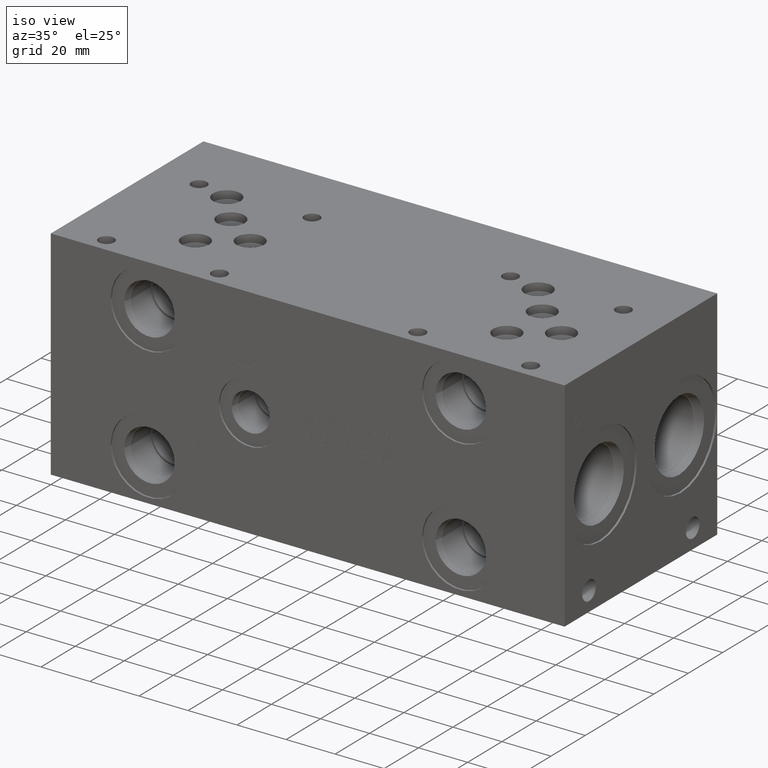
[diagram: clean part render]
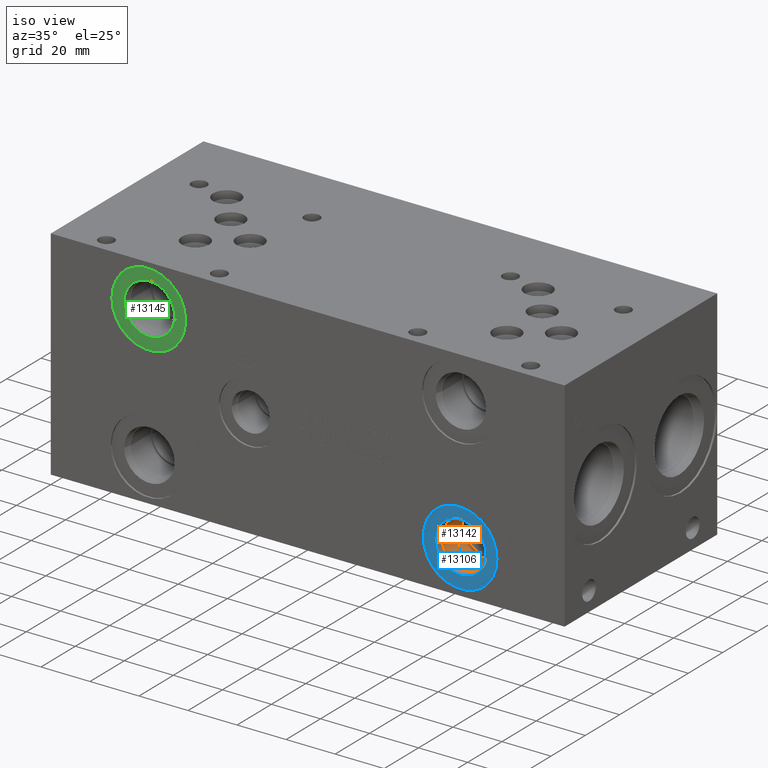
[diagram: same view with three faces highlighted in distinct colors, each labeled with its STEP entity id]
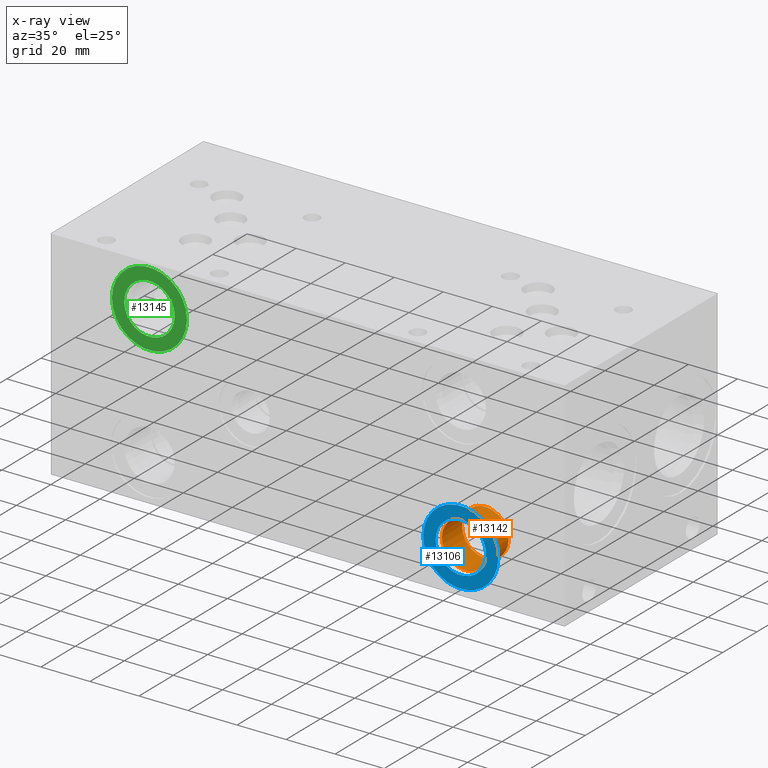
[diagram: x-ray of the same camera — body ghosted, the three highlighted faces saturated]
A machine part, iso view with three faces highlighted in distinct colors.
The next image is the same camera in x-ray (body ghosted, the three faces saturated) — at least one of them is partly hidden behind the body in this view.
Their STEP definitions:

[orange] entity #13142 — the highlighted cylindrical surface (bore or boss wall) has radius 9.525 mm, axis along (0, -1, 0).
#125=CYLINDRICAL_SURFACE('',#13867,9.525);
#310=CIRCLE('',#13783,9.525);
#359=CIRCLE('',#13864,9.525);
#360=CIRCLE('',#13865,9.525);
#1718=FACE_OUTER_BOUND('',#2480,.T.);
#2480=EDGE_LOOP('',(#11306,#11307,#11308,#11309,#11310));
#3691=LINE('',#22555,#4859);
#4859=VECTOR('',#16445,9.525);
#5993=VERTEX_POINT('',#22387);
#6046=VERTEX_POINT('',#22548);
#6047=VERTEX_POINT('',#22549);
#7766=EDGE_CURVE('',#5993,#5993,#310,.T.);
#7841=EDGE_CURVE('',#6046,#6047,#359,.T.);
#7842=EDGE_CURVE('',#6047,#6046,#360,.T.);
#7844=EDGE_CURVE('',#5993,#6047,#3691,.T.);
#11306=ORIENTED_EDGE('',*,*,#7766,.T.);
#11307=ORIENTED_EDGE('',*,*,#7844,.T.);
#11308=ORIENTED_EDGE('',*,*,#7841,.F.);
#11309=ORIENTED_EDGE('',*,*,#7842,.F.);
#11310=ORIENTED_EDGE('',*,*,#7844,.F.);
#13142=ADVANCED_FACE('',(#1718),#125,.F.);
#13783=AXIS2_PLACEMENT_3D('',#22389,#16249,#16250);
#13864=AXIS2_PLACEMENT_3D('',#22550,#16437,#16438);
#13865=AXIS2_PLACEMENT_3D('',#22551,#16439,#16440);
#13867=AXIS2_PLACEMENT_3D('',#22554,#16443,#16444);
#16249=DIRECTION('center_axis',(0.,-1.,0.));
#16250=DIRECTION('ref_axis',(1.,0.,0.));
#16437=DIRECTION('center_axis',(0.,-1.,0.));
#16438=DIRECTION('ref_axis',(1.,0.,0.));
#16439=DIRECTION('center_axis',(0.,-1.,0.));
#16440=DIRECTION('ref_axis',(1.,0.,0.));
#16443=DIRECTION('center_axis',(0.,-1.,0.));
#16444=DIRECTION('ref_axis',(1.,0.,0.));
#16445=DIRECTION('',(0.,1.,0.));
#22387=CARTESIAN_POINT('',(157.1498,3.4036,17.4752));
#22389=CARTESIAN_POINT('Origin',(166.6748,3.4036,17.4752));
#22548=CARTESIAN_POINT('',(176.1998,15.0622,17.4752));
#22549=CARTESIAN_POINT('',(157.1498,15.0622,17.4752));
#22550=CARTESIAN_POINT('Origin',(166.6748,15.0622,17.4752));
#22551=CARTESIAN_POINT('Origin',(166.6748,15.0622,17.4752));
#22554=CARTESIAN_POINT('Origin',(166.6748,7.5311,17.4752));
#22555=CARTESIAN_POINT('',(157.1498,7.5311,17.4752));

[blue] entity #13106 — the highlighted planar face has unit normal (0, 1, 0).
#302=CIRCLE('',#13771,15.3162);
#303=CIRCLE('',#13772,15.3162);
#304=CIRCLE('',#13774,10.2997);
#305=CIRCLE('',#13775,10.2997);
#548=FACE_BOUND('',#2438,.T.);
#1682=FACE_OUTER_BOUND('',#2437,.T.);
#2437=EDGE_LOOP('',(#11133,#11134));
#2438=EDGE_LOOP('',(#11135,#11136));
#5985=VERTEX_POINT('',#22364);
#5986=VERTEX_POINT('',#22366);
#5987=VERTEX_POINT('',#22370);
#5988=VERTEX_POINT('',#22371);
#7755=EDGE_CURVE('',#5985,#5986,#302,.T.);
#7756=EDGE_CURVE('',#5986,#5985,#303,.T.);
#7757=EDGE_CURVE('',#5987,#5988,#304,.T.);
#7758=EDGE_CURVE('',#5988,#5987,#305,.T.);
#11133=ORIENTED_EDGE('',*,*,#7756,.F.);
#11134=ORIENTED_EDGE('',*,*,#7755,.F.);
#11135=ORIENTED_EDGE('',*,*,#7757,.T.);
#11136=ORIENTED_EDGE('',*,*,#7758,.T.);
#12023=PLANE('',#13773);
#13106=ADVANCED_FACE('',(#1682,#548),#12023,.F.);
#13771=AXIS2_PLACEMENT_3D('',#22367,#16222,#16223);
#13772=AXIS2_PLACEMENT_3D('',#22368,#16224,#16225);
#13773=AXIS2_PLACEMENT_3D('',#22369,#16226,#16227);
#13774=AXIS2_PLACEMENT_3D('',#22372,#16228,#16229);
#13775=AXIS2_PLACEMENT_3D('',#22373,#16230,#16231);
#16222=DIRECTION('center_axis',(0.,1.,0.));
#16223=DIRECTION('ref_axis',(1.,0.,0.));
#16224=DIRECTION('center_axis',(0.,1.,0.));
#16225=DIRECTION('ref_axis',(1.,0.,0.));
#16226=DIRECTION('center_axis',(0.,1.,0.));
#16227=DIRECTION('ref_axis',(0.,0.,1.));
#16228=DIRECTION('center_axis',(0.,1.,0.));
#16229=DIRECTION('ref_axis',(1.,0.,0.));
#16230=DIRECTION('center_axis',(0.,1.,0.));
#16231=DIRECTION('ref_axis',(1.,0.,0.));
#22364=CARTESIAN_POINT('',(151.3586,0.7874,17.4752));
#22366=CARTESIAN_POINT('',(181.991,0.7874,17.4752));
#22367=CARTESIAN_POINT('Origin',(166.6748,0.7874,17.4752));
#22368=CARTESIAN_POINT('Origin',(166.6748,0.7874,17.4752));
#22369=CARTESIAN_POINT('Origin',(176.9745,0.7874,17.4752));
#22370=CARTESIAN_POINT('',(176.9745,0.7874,17.4752));
#22371=CARTESIAN_POINT('',(156.3751,0.787399999999999,17.4752));
#22372=CARTESIAN_POINT('Origin',(166.6748,0.7874,17.4752));
#22373=CARTESIAN_POINT('Origin',(166.6748,0.7874,17.4752));

[green] entity #13145 — the highlighted planar face has unit normal (0, 1, 0).
#362=CIRCLE('',#13870,15.3162);
#363=CIRCLE('',#13871,15.3162);
#364=CIRCLE('',#13873,10.2997);
#365=CIRCLE('',#13874,10.2997);
#555=FACE_BOUND('',#2484,.T.);
#1721=FACE_OUTER_BOUND('',#2483,.T.);
#2483=EDGE_LOOP('',(#11322,#11323));
#2484=EDGE_LOOP('',(#11324,#11325));
#6049=VERTEX_POINT('',#22559);
#6050=VERTEX_POINT('',#22561);
#6051=VERTEX_POINT('',#22565);
#6052=VERTEX_POINT('',#22566);
#7847=EDGE_CURVE('',#6049,#6050,#362,.T.);
#7848=EDGE_CURVE('',#6050,#6049,#363,.T.);
#7849=EDGE_CURVE('',#6051,#6052,#364,.T.);
#7850=EDGE_CURVE('',#6052,#6051,#365,.T.);
#11322=ORIENTED_EDGE('',*,*,#7848,.F.);
#11323=ORIENTED_EDGE('',*,*,#7847,.F.);
#11324=ORIENTED_EDGE('',*,*,#7849,.T.);
#11325=ORIENTED_EDGE('',*,*,#7850,.T.);
#12030=PLANE('',#13872);
#13145=ADVANCED_FACE('',(#1721,#555),#12030,.F.);
#13870=AXIS2_PLACEMENT_3D('',#22562,#16452,#16453);
#13871=AXIS2_PLACEMENT_3D('',#22563,#16454,#16455);
#13872=AXIS2_PLACEMENT_3D('',#22564,#16456,#16457);
#13873=AXIS2_PLACEMENT_3D('',#22567,#16458,#16459);
#13874=AXIS2_PLACEMENT_3D('',#22568,#16460,#16461);
#16452=DIRECTION('center_axis',(0.,1.,0.));
#16453=DIRECTION('ref_axis',(1.,0.,0.));
#16454=DIRECTION('center_axis',(0.,1.,0.));
#16455=DIRECTION('ref_axis',(1.,0.,0.));
#16456=DIRECTION('center_axis',(0.,1.,0.));
#16457=DIRECTION('ref_axis',(0.,0.,1.));
#16458=DIRECTION('center_axis',(0.,1.,0.));
#16459=DIRECTION('ref_axis',(1.,0.,0.));
#16460=DIRECTION('center_axis',(0.,1.,0.));
#16461=DIRECTION('ref_axis',(1.,0.,0.));
#22559=CARTESIAN_POINT('',(24.3586,0.7874,71.4248));
#22561=CARTESIAN_POINT('',(54.991,0.7874,71.4248));
#22562=CARTESIAN_POINT('Origin',(39.6748,0.7874,71.4248));
#22563=CARTESIAN_POINT('Origin',(39.6748,0.7874,71.4248));
#22564=CARTESIAN_POINT('Origin',(49.9745,0.7874,71.4248));
#22565=CARTESIAN_POINT('',(49.9745,0.7874,71.4248));
#22566=CARTESIAN_POINT('',(29.3751,0.787400000000001,71.4248));
#22567=CARTESIAN_POINT('Origin',(39.6748,0.7874,71.4248));
#22568=CARTESIAN_POINT('Origin',(39.6748,0.7874,71.4248));